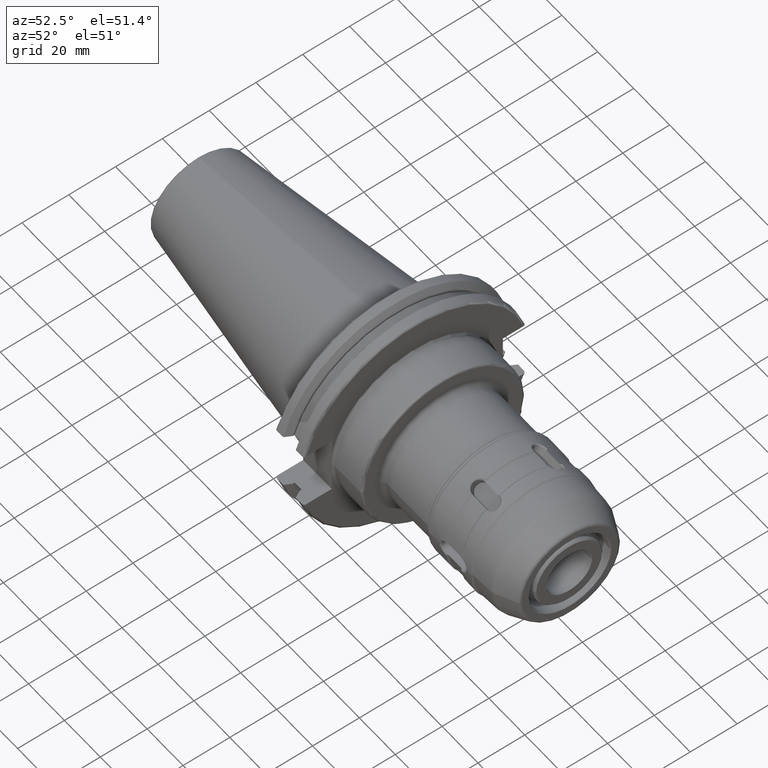
[diagram: clean part render]
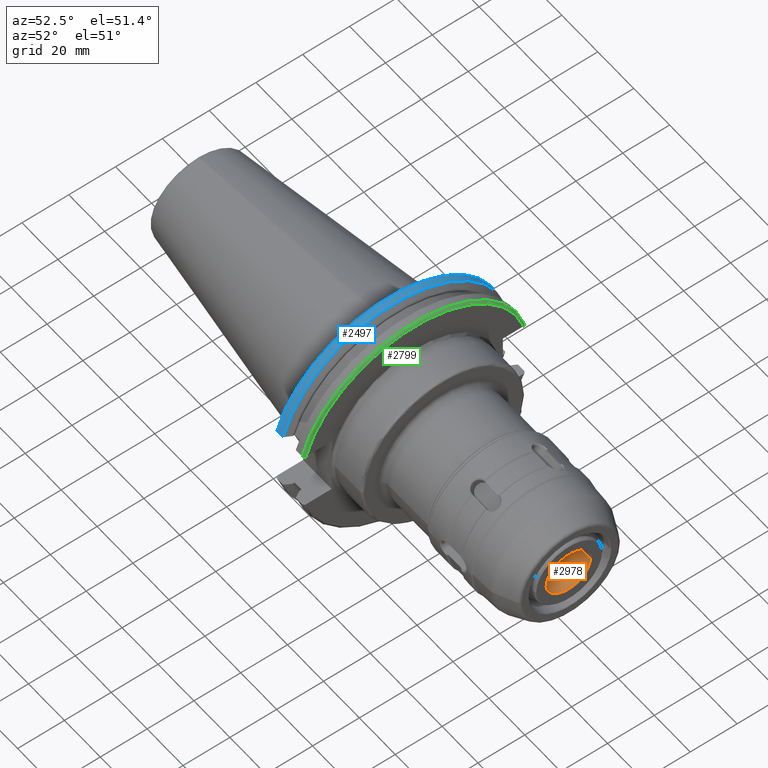
[diagram: same view with three faces highlighted in distinct colors, each labeled with its STEP entity id]
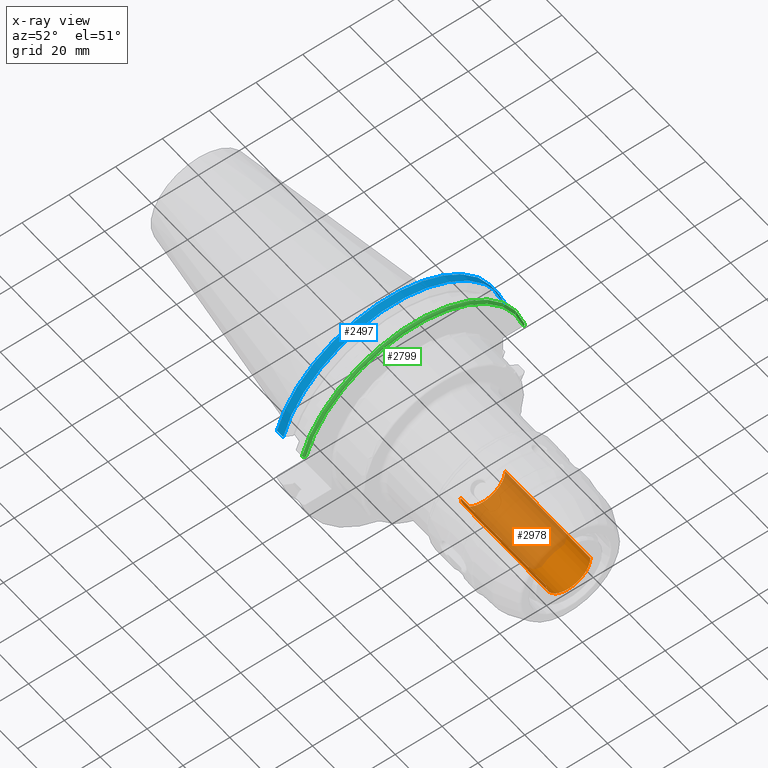
[diagram: x-ray of the same camera — body ghosted, the three highlighted faces saturated]
A machine part, auxiliary view with three faces highlighted in distinct colors.
The next image is the same camera in x-ray (body ghosted, the three faces saturated) — at least one of them is partly hidden behind the body in this view.
Their STEP definitions:

[orange] entity #2978 — the highlighted cylindrical surface (edge-blend (fillet) strip) has radius 9.525 mm, axis along (-1, 0, 0).
#261=DIRECTION('',(-1.E0,-3.297266461750E-10,3.186417081500E-9));
#262=VECTOR('',#261,4.749999997287E1);
#263=CARTESIAN_POINT('',(1.044999999729E2,-9.524999984338E0,
-1.513548124513E-7));
#264=LINE('',#263,#262);
#1117=CARTESIAN_POINT('',(1.045E2,0.E0,0.E0));
#1118=DIRECTION('',(-1.E0,0.E0,0.E0));
#1119=DIRECTION('',(0.E0,1.E0,0.E0));
#1120=AXIS2_PLACEMENT_3D('',#1117,#1118,#1119);
#1122=CARTESIAN_POINT('',(5.7E1,0.E0,0.E0));
#1123=DIRECTION('',(-1.E0,0.E0,0.E0));
#1124=DIRECTION('',(0.E0,1.E0,0.E0));
#1125=AXIS2_PLACEMENT_3D('',#1122,#1123,#1124);
#1127=DIRECTION('',(-1.E0,3.297267209690E-10,-3.186417092066E-9));
#1128=VECTOR('',#1127,4.749999997287E1);
#1129=CARTESIAN_POINT('',(1.044999999729E2,9.524999984338E0,1.513548129532E-7));
#1130=LINE('',#1129,#1128);
#1294=CARTESIAN_POINT('',(1.045E2,9.525E0,0.E0));
#1295=CARTESIAN_POINT('',(1.045E2,-9.525E0,0.E0));
#1296=VERTEX_POINT('',#1294);
#1297=VERTEX_POINT('',#1295);
#1298=CARTESIAN_POINT('',(5.7E1,-9.525E0,0.E0));
#1299=VERTEX_POINT('',#1298);
#1300=CARTESIAN_POINT('',(5.7E1,9.525E0,0.E0));
#1301=VERTEX_POINT('',#1300);
#2967=CARTESIAN_POINT('',(1.05E2,0.E0,0.E0));
#2968=DIRECTION('',(-1.E0,0.E0,0.E0));
#2969=DIRECTION('',(0.E0,-1.E0,0.E0));
#2970=AXIS2_PLACEMENT_3D('',#2967,#2968,#2969);
#2971=CYLINDRICAL_SURFACE('',#2970,9.525E0);
#2972=ORIENTED_EDGE('',*,*,#2961,.T.);
#2973=ORIENTED_EDGE('',*,*,#1832,.T.);
#2974=ORIENTED_EDGE('',*,*,#1805,.F.);
#2975=ORIENTED_EDGE('',*,*,#1829,.F.);
#2976=EDGE_LOOP('',(#2972,#2973,#2974,#2975));
#2977=FACE_OUTER_BOUND('',#2976,.F.);
#2978=ADVANCED_FACE('',(#2977),#2971,.F.);
#1121=CIRCLE('',#1120,9.525E0);
#1126=CIRCLE('',#1125,9.525E0);
#1805=EDGE_CURVE('',#1301,#1299,#1126,.T.);
#1829=EDGE_CURVE('',#1296,#1301,#1130,.T.);
#1832=EDGE_CURVE('',#1297,#1299,#264,.T.);
#2961=EDGE_CURVE('',#1296,#1297,#1121,.T.);

[blue] entity #2497 — the highlighted cylindrical surface (partial cylindrical patch) has radius 49.1998 mm, axis along (1, 0, 0).
#710=DIRECTION('',(1.E0,0.E0,0.E0));
#711=VECTOR('',#710,3.456148044722E0);
#712=CARTESIAN_POINT('',(4.1656E0,4.746381994783E1,1.2954E1));
#713=LINE('',#712,#711);
#714=DIRECTION('',(1.E0,0.E0,0.E0));
#715=VECTOR('',#714,3.456148044722E0);
#716=CARTESIAN_POINT('',(4.1656E0,-4.746381994783E1,1.2954E1));
#717=LINE('',#716,#715);
#739=CARTESIAN_POINT('',(7.621748044722E0,-4.746381994783E1,1.2954E1));
#741=CARTESIAN_POINT('',(7.621748044722E0,0.E0,0.E0));
#742=DIRECTION('',(-1.E0,0.E0,0.E0));
#743=DIRECTION('',(0.E0,-9.647157091661E-1,2.632937532266E-1));
#744=AXIS2_PLACEMENT_3D('',#741,#742,#743);
#746=CARTESIAN_POINT('',(7.621748044722E0,4.746381994783E1,1.2954E1));
#800=CARTESIAN_POINT('',(4.1656E0,0.E0,0.E0));
#801=DIRECTION('',(1.E0,0.E0,0.E0));
#802=DIRECTION('',(0.E0,9.647157091661E-1,2.632937532266E-1));
#803=AXIS2_PLACEMENT_3D('',#800,#801,#802);
#1156=VERTEX_POINT('',#746);
#1179=VERTEX_POINT('',#739);
#1208=CARTESIAN_POINT('',(4.1656E0,4.746381994783E1,1.2954E1));
#1209=CARTESIAN_POINT('',(4.1656E0,-4.746381994783E1,1.2954E1));
#1210=VERTEX_POINT('',#1208);
#1211=VERTEX_POINT('',#1209);
#2482=CARTESIAN_POINT('',(0.E0,0.E0,0.E0));
#2483=DIRECTION('',(1.E0,0.E0,0.E0));
#2484=DIRECTION('',(0.E0,0.E0,1.E0));
#2485=AXIS2_PLACEMENT_3D('',#2482,#2483,#2484);
#2486=CYLINDRICAL_SURFACE('',#2485,4.91998E1);
#2488=ORIENTED_EDGE('',*,*,#2487,.F.);
#2490=ORIENTED_EDGE('',*,*,#2489,.T.);
#2492=ORIENTED_EDGE('',*,*,#2491,.F.);
#2494=ORIENTED_EDGE('',*,*,#2493,.F.);
#2495=EDGE_LOOP('',(#2488,#2490,#2492,#2494));
#2496=FACE_OUTER_BOUND('',#2495,.F.);
#2497=ADVANCED_FACE('',(#2496),#2486,.T.);
#745=CIRCLE('',#744,4.91998E1);
#804=CIRCLE('',#803,4.91998E1);
#2487=EDGE_CURVE('',#1210,#1211,#804,.T.);
#2489=EDGE_CURVE('',#1210,#1156,#713,.T.);
#2491=EDGE_CURVE('',#1179,#1156,#745,.T.);
#2493=EDGE_CURVE('',#1211,#1179,#717,.T.);

[green] entity #2799 — the highlighted toroidal blend (fillet) surface has major radius 48.2092 mm and minor (blend) radius 0.9906 mm.
#791=CARTESIAN_POINT('',(1.905E1,-4.643620191876E1,1.2954E1));
#792=CARTESIAN_POINT('',(1.905E1,-4.654908697122E1,1.2954E1));
#793=CARTESIAN_POINT('',(1.901618658663E1,-4.676192103721E1,1.2954E1));
#794=CARTESIAN_POINT('',(1.887017862935E1,-4.705624595248E1,1.2954E1));
#795=CARTESIAN_POINT('',(1.864781933357E1,-4.728417092797E1,1.2954E1));
#796=CARTESIAN_POINT('',(1.836453560863E1,-4.743113936890E1,1.2954E1));
#797=CARTESIAN_POINT('',(1.816460078918E1,-4.746381994783E1,1.2954E1));
#798=CARTESIAN_POINT('',(1.80594E1,-4.746381994783E1,1.2954E1));
#887=CARTESIAN_POINT('',(1.80594E1,4.746381994783E1,1.2954E1));
#888=CARTESIAN_POINT('',(1.816460078918E1,4.746381994783E1,1.2954E1));
#889=CARTESIAN_POINT('',(1.836453560863E1,4.743113936890E1,1.2954E1));
#890=CARTESIAN_POINT('',(1.864781933357E1,4.728417092797E1,1.2954E1));
#891=CARTESIAN_POINT('',(1.887017862935E1,4.705624595248E1,1.2954E1));
#892=CARTESIAN_POINT('',(1.901618658663E1,4.676192103721E1,1.2954E1));
#893=CARTESIAN_POINT('',(1.905E1,4.654908697122E1,1.2954E1));
#894=CARTESIAN_POINT('',(1.905E1,4.643620191876E1,1.2954E1));
#950=CARTESIAN_POINT('',(1.80594E1,0.E0,0.E0));
#951=DIRECTION('',(-1.E0,0.E0,0.E0));
#952=DIRECTION('',(0.E0,-9.647157091661E-1,2.632937532266E-1));
#953=AXIS2_PLACEMENT_3D('',#950,#951,#952);
#955=CARTESIAN_POINT('',(1.905E1,0.E0,0.E0));
#956=DIRECTION('',(1.E0,0.E0,0.E0));
#957=DIRECTION('',(0.E0,9.632228271525E-1,2.687038988409E-1));
#958=AXIS2_PLACEMENT_3D('',#955,#956,#957);
#1278=VERTEX_POINT('',#887);
#1279=VERTEX_POINT('',#894);
#1280=VERTEX_POINT('',#791);
#1281=VERTEX_POINT('',#798);
#2788=CARTESIAN_POINT('',(1.80594E1,0.E0,0.E0));
#2789=DIRECTION('',(1.E0,0.E0,0.E0));
#2790=DIRECTION('',(0.E0,9.999994084209E-1,-1.087730577645E-3));
#2791=AXIS2_PLACEMENT_3D('',#2788,#2789,#2790);
#2792=TOROIDAL_SURFACE('',#2791,4.82092E1,9.906E-1);
#2793=ORIENTED_EDGE('',*,*,#2518,.T.);
#2794=ORIENTED_EDGE('',*,*,#2687,.T.);
#2795=ORIENTED_EDGE('',*,*,#2374,.T.);
#2796=ORIENTED_EDGE('',*,*,#2576,.T.);
#2797=EDGE_LOOP('',(#2793,#2794,#2795,#2796));
#2798=FACE_OUTER_BOUND('',#2797,.F.);
#2799=ADVANCED_FACE('',(#2798),#2792,.T.);
#799=B_SPLINE_CURVE_WITH_KNOTS('',3,(#791,#792,#793,#794,#795,#796,#797,#798),
.UNSPECIFIED.,.F.,.F.,(4,1,1,1,1,4),(0.E0,2.E-1,4.E-1,6.E-1,8.E-1,1.E0),
.UNSPECIFIED.);
#895=B_SPLINE_CURVE_WITH_KNOTS('',3,(#887,#888,#889,#890,#891,#892,#893,#894),
.UNSPECIFIED.,.F.,.F.,(4,1,1,1,1,4),(0.E0,2.E-1,4.E-1,6.E-1,8.E-1,1.E0),
.UNSPECIFIED.);
#954=CIRCLE('',#953,4.91998E1);
#959=CIRCLE('',#958,4.82092E1);
#2374=EDGE_CURVE('',#1279,#1280,#959,.T.);
#2518=EDGE_CURVE('',#1281,#1278,#954,.T.);
#2576=EDGE_CURVE('',#1280,#1281,#799,.T.);
#2687=EDGE_CURVE('',#1278,#1279,#895,.T.);